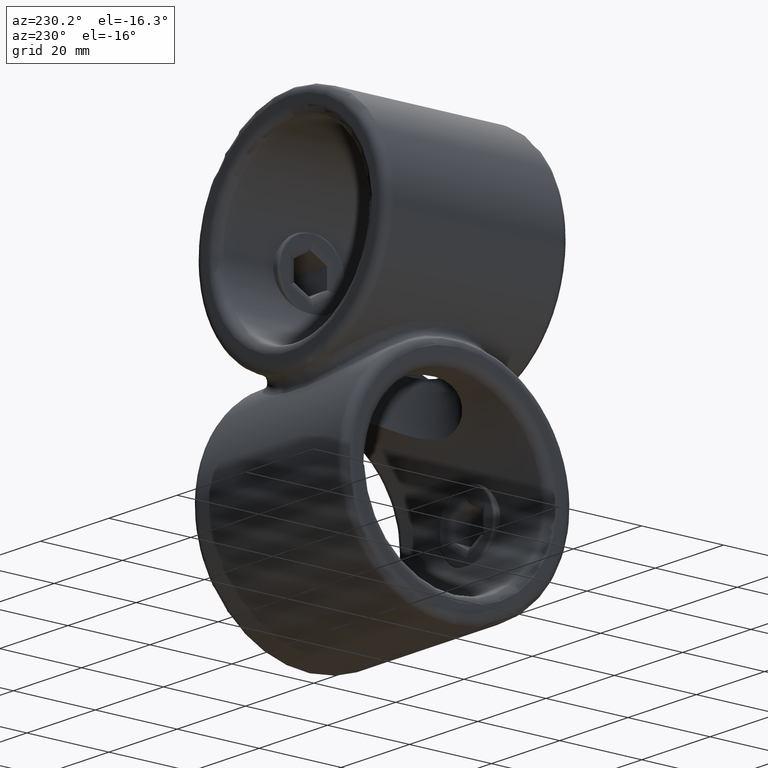
[diagram: clean part render]
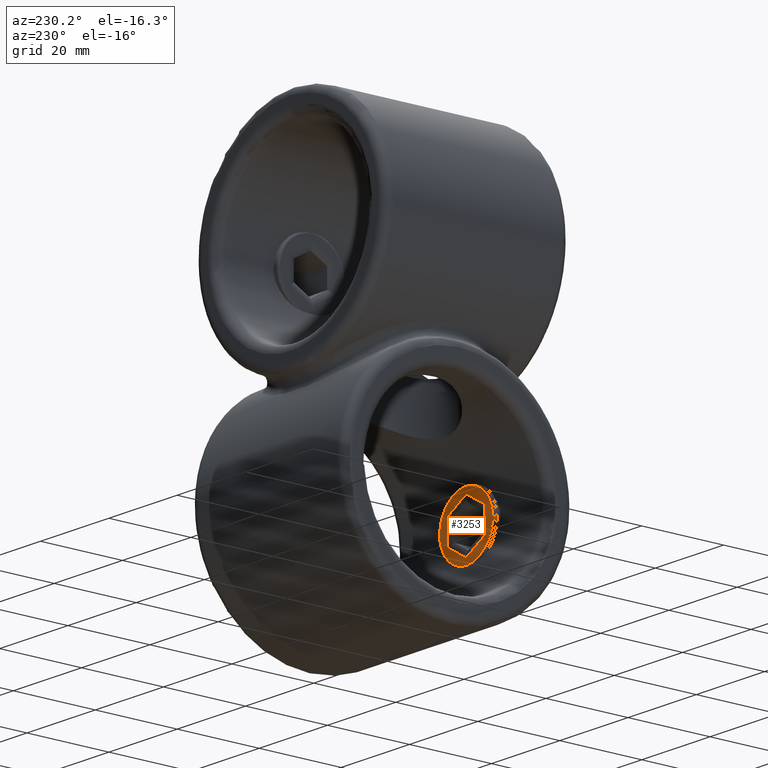
[diagram: same view with one face highlighted and labeled with its STEP entity id]
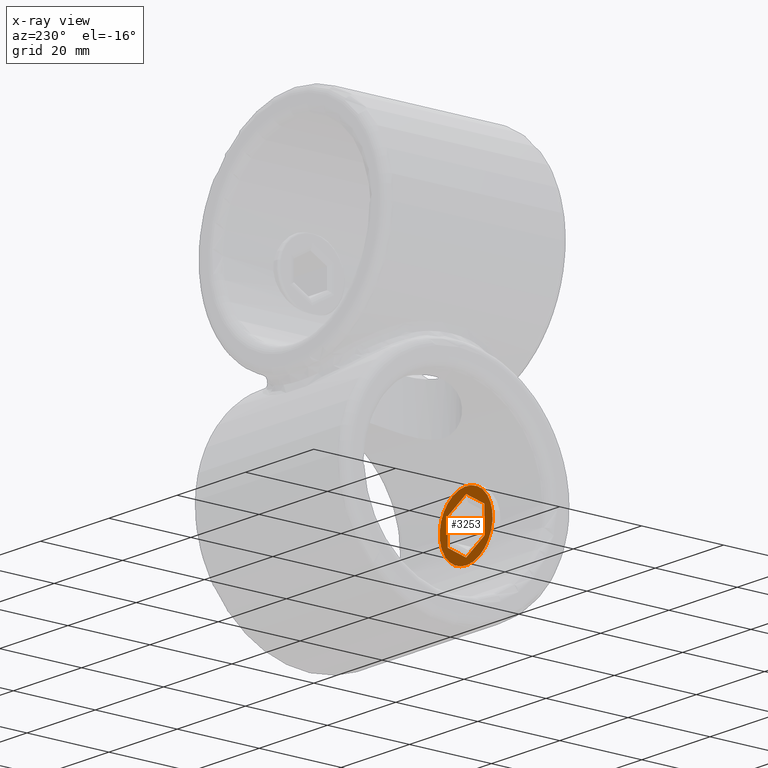
[diagram: x-ray of the same camera — body ghosted, the highlighted face saturated]
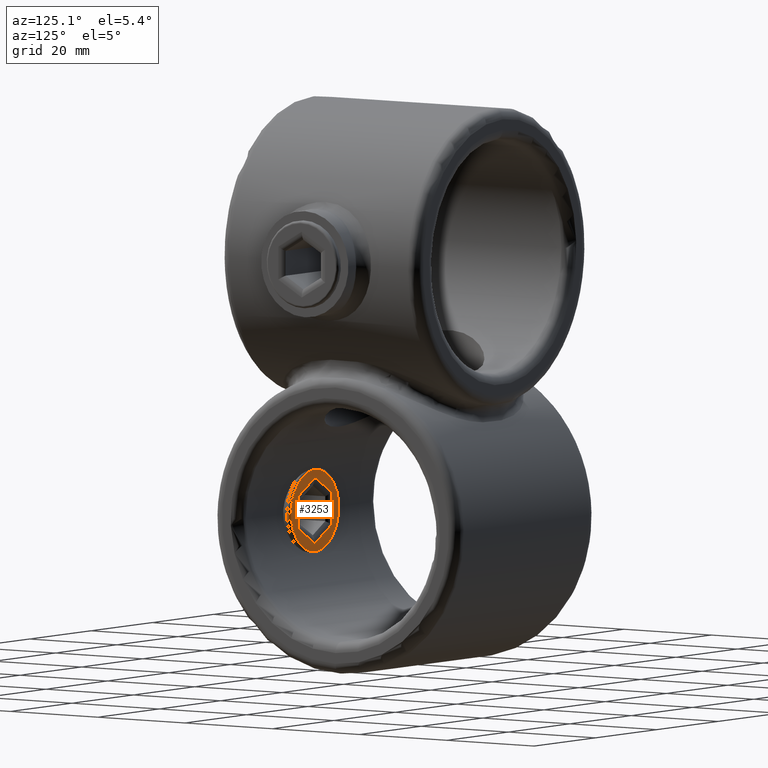
[diagram: same view with one face highlighted and labeled with its STEP entity id]
A machine part, auxiliary view. The second image highlights one B-rep face of the part: STEP entity #3253.
The next image is the same camera in x-ray: the body ghosted, the highlighted face saturated — about 0% of this face is hidden behind the body in this view.
A second angle (auxiliary view) of the same face is appended — the face is thin or edge-on in the first view.
In plain terms, the highlighted planar face has unit normal (0, 1, 0).
Its self-contained STEP definition (entity closure, byte-faithful):
#76 = CARTESIAN_POINT ( 'NONE',  ( 0.000000000000000000, 13.00000000000000000, 0.000000000000000000 ) ) ;
#122 = LINE ( 'NONE', #3307, #721 ) ;
#152 = EDGE_CURVE ( 'NONE', #3418, #341, #1518, .T. ) ;
#266 = VERTEX_POINT ( 'NONE', #2607 ) ;
#341 = VERTEX_POINT ( 'NONE', #2317 ) ;
#390 = DIRECTION ( 'NONE',  ( 0.000000000000000000, 0.000000000000000000, 1.000000000000000000 ) ) ;
#721 = VECTOR ( 'NONE', #3922, 1000.000000000000000 ) ;
#818 = LINE ( 'NONE', #1276, #2755 ) ;
#942 = PLANE ( 'NONE',  #3169 ) ;
#962 = VERTEX_POINT ( 'NONE', #2630 ) ;
#975 = DIRECTION ( 'NONE',  ( 0.000000000000000000, 1.000000000000000000, 0.000000000000000000 ) ) ;
#1005 = DIRECTION ( 'NONE',  ( 1.000000000000000000, -0.000000000000000000, 0.000000000000000000 ) ) ;
#1091 = CARTESIAN_POINT ( 'NONE',  ( 3.338806356441557099, 13.00000000000000000, 4.960106590458402742 ) ) ;
#1123 = FACE_OUTER_BOUND ( 'NONE', #2088, .T. ) ;
#1135 = ORIENTED_EDGE ( 'NONE', *, *, #152, .T. ) ;
#1248 = CARTESIAN_POINT ( 'NONE',  ( 0.000000000000000000, 13.00000000000000000, 0.000000000000000000 ) ) ;
#1276 = CARTESIAN_POINT ( 'NONE',  ( 2.626175134594813443, 13.00000000000000000, -5.371544418224547535 ) ) ;
#1518 = LINE ( 'NONE', #3518, #3165 ) ;
#1569 = EDGE_CURVE ( 'NONE', #962, #962, #2946, .T. ) ;
#1571 = EDGE_CURVE ( 'NONE', #3704, #3775, #818, .T. ) ;
#1617 = AXIS2_PLACEMENT_3D ( 'NONE', #76, #2228, #390 ) ;
#1641 = DIRECTION ( 'NONE',  ( -1.000000000000000000, 0.000000000000000000, -1.855319225643643478E-16 ) ) ;
#1710 = VECTOR ( 'NONE', #2010, 1000.000000000000227 ) ;
#1777 = DIRECTION ( 'NONE',  ( -0.4999999999999992228, 0.000000000000000000, 0.8660254037844390407 ) ) ;
#1793 = VECTOR ( 'NONE', #1641, 1000.000000000000000 ) ;
#1811 = EDGE_CURVE ( 'NONE', #1847, #266, #3238, .T. ) ;
#1847 = VERTEX_POINT ( 'NONE', #2967 ) ;
#1860 = FACE_BOUND ( 'NONE', #2742, .T. ) ;
#1935 = ORIENTED_EDGE ( 'NONE', *, *, #1569, .T. ) ;
#1988 = EDGE_CURVE ( 'NONE', #3775, #1847, #122, .T. ) ;
#1999 = CARTESIAN_POINT ( 'NONE',  ( 3.101262615825974844, 13.00000000000000000, -5.371544418224547535 ) ) ;
#2010 = DIRECTION ( 'NONE',  ( 0.4999999999999997780, 0.000000000000000000, -0.8660254037844387076 ) ) ;
#2088 = EDGE_LOOP ( 'NONE', ( #1935 ) ) ;
#2171 = ORIENTED_EDGE ( 'NONE', *, *, #1811, .T. ) ;
#2228 = DIRECTION ( 'NONE',  ( 0.000000000000000000, 1.000000000000000000, 0.000000000000000000 ) ) ;
#2294 = LINE ( 'NONE', #2668, #1710 ) ;
#2317 = CARTESIAN_POINT ( 'NONE',  ( -6.202525231651947024, 13.00000000000000000, 8.673617379884035472E-16 ) ) ;
#2561 = CARTESIAN_POINT ( 'NONE',  ( -2.626175134594815219, 13.00000000000000000, 5.371544418224547535 ) ) ;
#2607 = CARTESIAN_POINT ( 'NONE',  ( 3.101262615825978397, 13.00000000000000000, 5.371544418224548423 ) ) ;
#2614 = CARTESIAN_POINT ( 'NONE',  ( -3.101262615825973068, 13.00000000000000000, -5.371544418224547535 ) ) ;
#2617 = EDGE_CURVE ( 'NONE', #341, #3704, #2294, .T. ) ;
#2630 = CARTESIAN_POINT ( 'NONE',  ( 0.000000000000000000, 13.00000000000000000, 7.750000000000000000 ) ) ;
#2668 = CARTESIAN_POINT ( 'NONE',  ( -3.338806356441553547, 13.00000000000000000, -4.960106590458400966 ) ) ;
#2742 = EDGE_LOOP ( 'NONE', ( #1135, #3531, #2745, #3213, #2171, #2888 ) ) ;
#2745 = ORIENTED_EDGE ( 'NONE', *, *, #1571, .T. ) ;
#2755 = VECTOR ( 'NONE', #1005, 1000.000000000000000 ) ;
#2888 = ORIENTED_EDGE ( 'NONE', *, *, #3907, .T. ) ;
#2946 = CIRCLE ( 'NONE', #1617, 7.750000000000000000 ) ;
#2967 = CARTESIAN_POINT ( 'NONE',  ( 6.202525231651947912, 13.00000000000000000, -1.409462824231155764E-15 ) ) ;
#3134 = DIRECTION ( 'NONE',  ( 0.000000000000000000, -0.000000000000000000, 1.000000000000000000 ) ) ;
#3165 = VECTOR ( 'NONE', #3850, 1000.000000000000114 ) ;
#3169 = AXIS2_PLACEMENT_3D ( 'NONE', #1248, #975, #3134 ) ;
#3185 = VECTOR ( 'NONE', #1777, 1000.000000000000227 ) ;
#3213 = ORIENTED_EDGE ( 'NONE', *, *, #1988, .T. ) ;
#3238 = LINE ( 'NONE', #1091, #3185 ) ;
#3253 = ADVANCED_FACE ( 'NONE', ( #1860, #1123 ), #942, .T. ) ;
#3307 = CARTESIAN_POINT ( 'NONE',  ( 5.964981491036367878, 13.00000000000000000, -0.4114378277661481231 ) ) ;
#3343 = LINE ( 'NONE', #2561, #1793 ) ;
#3418 = VERTEX_POINT ( 'NONE', #3921 ) ;
#3518 = CARTESIAN_POINT ( 'NONE',  ( -5.964981491036366990, 13.00000000000000000, 0.4114378277661476790 ) ) ;
#3531 = ORIENTED_EDGE ( 'NONE', *, *, #2617, .T. ) ;
#3704 = VERTEX_POINT ( 'NONE', #2614 ) ;
#3775 = VERTEX_POINT ( 'NONE', #1999 ) ;
#3850 = DIRECTION ( 'NONE',  ( -0.4999999999999998335, 0.000000000000000000, -0.8660254037844387076 ) ) ;
#3907 = EDGE_CURVE ( 'NONE', #266, #3418, #3343, .T. ) ;
#3921 = CARTESIAN_POINT ( 'NONE',  ( -3.101262615825973956, 13.00000000000000000, 5.371544418224547535 ) ) ;
#3922 = DIRECTION ( 'NONE',  ( 0.4999999999999998890, -0.000000000000000000, 0.8660254037844387076 ) ) ;